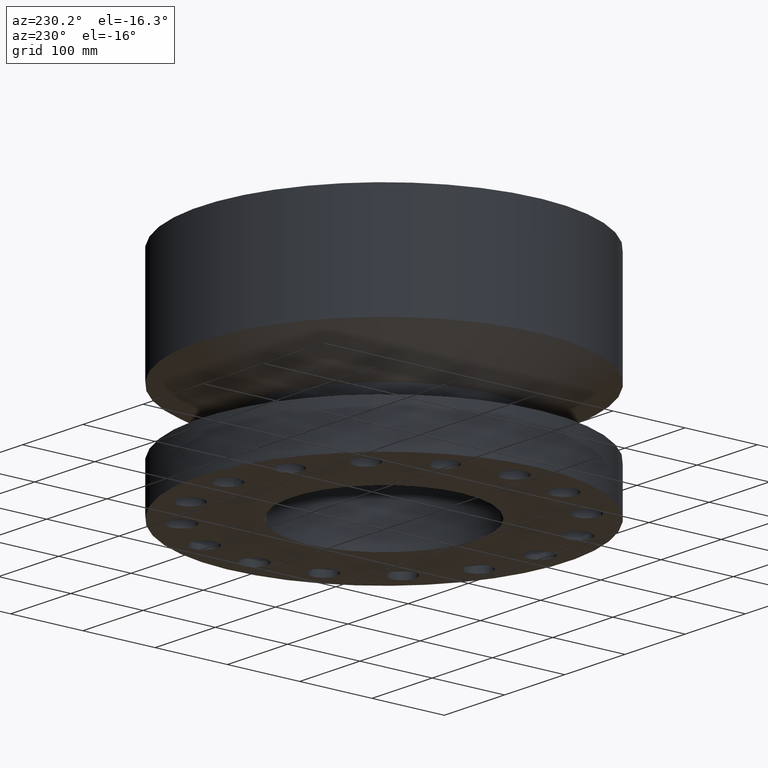
[diagram: clean part render]
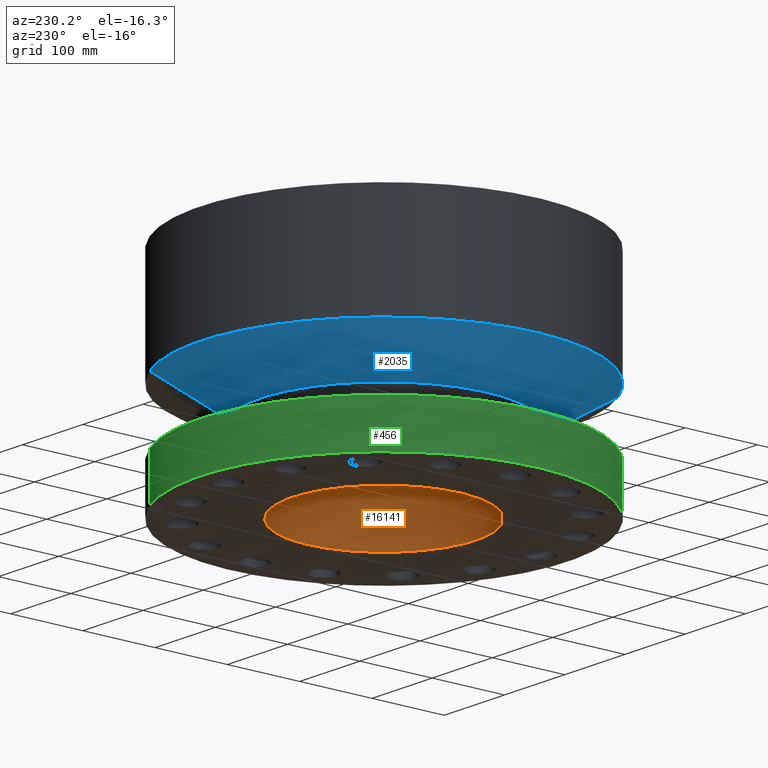
[diagram: same view with three faces highlighted in distinct colors, each labeled with its STEP entity id]
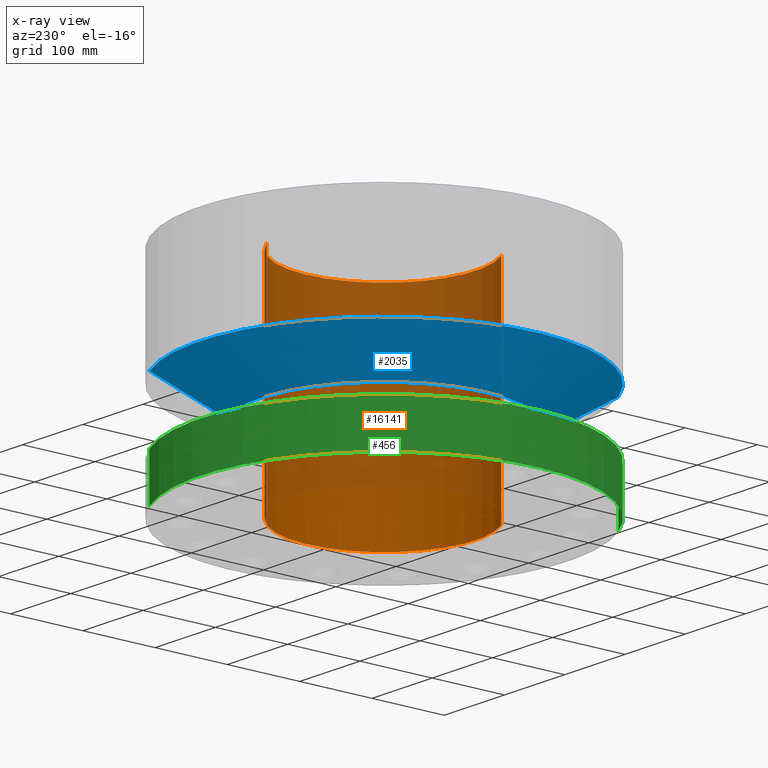
[diagram: x-ray of the same camera — body ghosted, the three highlighted faces saturated]
A machine part, auxiliary view with three faces highlighted in distinct colors.
The next image is the same camera in x-ray (body ghosted, the three faces saturated) — at least one of them is partly hidden behind the body in this view.
Their STEP definitions:

[orange] entity #16141 — the highlighted cylindrical surface (partial cylindrical patch) has radius 127 mm, axis along (0, 0, -1).
#15685=AXIS2_PLACEMENT_3D('Circle Axis2P3D',#15683,#15684,$) ;
#16114=AXIS2_PLACEMENT_3D('Cylinder Axis2P3D',#16111,#16112,#16113) ;
#16118=AXIS2_PLACEMENT_3D('Circle Axis2P3D',#16116,#16117,$) ;
#15678=CARTESIAN_POINT('Vertex',(-2.39712769303,-4.38791280947,11.75)) ;
#15680=CARTESIAN_POINT('Vertex',(2.39712769303,4.38791280947,11.75)) ;
#15683=CARTESIAN_POINT('Axis2P3D Location',(0.,0.,11.75)) ;
#16111=CARTESIAN_POINT('Axis2P3D Location',(0.,0.,5.75000000002)) ;
#16116=CARTESIAN_POINT('Axis2P3D Location',(0.,0.,0.)) ;
#16120=CARTESIAN_POINT('Vertex',(-2.39712769303,-4.38791280947,0.)) ;
#16122=CARTESIAN_POINT('Vertex',(2.39712769303,4.38791280947,0.)) ;
#16125=CARTESIAN_POINT('Line Origine',(-2.39712769303,-4.38791280947,5.87500000002)) ;
#16130=CARTESIAN_POINT('Line Origine',(2.39712769303,4.38791280947,5.87500000002)) ;
#15684=DIRECTION('Axis2P3D Direction',(0.,0.,-0.0393700787402)) ;
#16112=DIRECTION('Axis2P3D Direction',(0.,0.,-0.0393700787402)) ;
#16113=DIRECTION('Axis2P3D XDirection',(-0.0188750212049,-0.0345504945626,0.)) ;
#16117=DIRECTION('Axis2P3D Direction',(0.,0.,-0.0393700787402)) ;
#16126=DIRECTION('Vector Direction',(0.,0.,-0.0393700787402)) ;
#16131=DIRECTION('Vector Direction',(0.,0.,-0.0393700787402)) ;
#16127=VECTOR('Line Direction',#16126,0.0393700787402) ;
#16132=VECTOR('Line Direction',#16131,0.0393700787402) ;
#16136=ORIENTED_EDGE('',*,*,#16124,.F.) ;
#16137=ORIENTED_EDGE('',*,*,#16129,.F.) ;
#16138=ORIENTED_EDGE('',*,*,#15687,.F.) ;
#16139=ORIENTED_EDGE('',*,*,#16134,.T.) ;
#16141=ADVANCED_FACE('PartBody',(#16140),#16115,.F.) ;
#15686=CIRCLE('generated circle',#15685,5.00000000002) ;
#16119=CIRCLE('generated circle',#16118,5.00000000002) ;
#16115=CYLINDRICAL_SURFACE('generated cylinder',#16114,5.00000000002) ;
#15687=EDGE_CURVE('',#15681,#15679,#15686,.T.) ;
#16124=EDGE_CURVE('',#16121,#16123,#16119,.F.) ;
#16129=EDGE_CURVE('',#15679,#16121,#16128,.T.) ;
#16134=EDGE_CURVE('',#15681,#16123,#16133,.T.) ;
#16135=EDGE_LOOP('',(#16136,#16137,#16138,#16139)) ;
#16140=FACE_OUTER_BOUND('',#16135,.T.) ;
#16128=LINE('Line',#16125,#16127) ;
#16133=LINE('Line',#16130,#16132) ;
#15679=VERTEX_POINT('',#15678) ;
#15681=VERTEX_POINT('',#15680) ;
#16121=VERTEX_POINT('',#16120) ;
#16123=VERTEX_POINT('',#16122) ;

[blue] entity #2035 — the highlighted conical surface has half-angle 60 deg.
#1470=AXIS2_PLACEMENT_3D('Circle Axis2P3D',#1468,#1469,$) ;
#1996=AXIS2_PLACEMENT_3D('Cone Axis2P3D',#1993,#1994,#1995) ;
#2026=AXIS2_PLACEMENT_3D('Circle Axis2P3D',#2024,#2025,$) ;
#1446=CARTESIAN_POINT('Vertex',(3.23612238559,5.92368229278,4.00000000002)) ;
#1453=CARTESIAN_POINT('Vertex',(-3.23612238559,-5.92368229278,4.00000000002)) ;
#1468=CARTESIAN_POINT('Axis2P3D Location',(0.,0.,4.00000000002)) ;
#1993=CARTESIAN_POINT('Axis2P3D Location',(0.,0.,4.00000000002)) ;
#1998=CARTESIAN_POINT('Line Origine',(4.01518888583,7.34975395586,4.93819418745)) ;
#2002=CARTESIAN_POINT('Vertex',(4.79425538606,8.77582561894,5.87638837489)) ;
#2009=CARTESIAN_POINT('Vertex',(-4.79425538606,-8.77582561894,5.87638837489)) ;
#2012=CARTESIAN_POINT('Line Origine',(-4.01518888583,-7.34975395586,4.93819418745)) ;
#2024=CARTESIAN_POINT('Axis2P3D Location',(0.,0.,5.87638837489)) ;
#1469=DIRECTION('Axis2P3D Direction',(0.,0.,-0.0393700787402)) ;
#1994=DIRECTION('Axis2P3D Direction',(-0.,-0.,0.0393700787402)) ;
#1995=DIRECTION('Axis2P3D XDirection',(0.0188750212049,0.0345504945626,0.)) ;
#1999=DIRECTION('Vector Direction',(0.0163462478604,0.0299216060045,0.0196850393701)) ;
#2013=DIRECTION('Vector Direction',(-0.0163462478604,-0.0299216060045,0.0196850393701)) ;
#2025=DIRECTION('Axis2P3D Direction',(-0.,0.,0.0393700787402)) ;
#2000=VECTOR('Line Direction',#1999,0.0393700787402) ;
#2014=VECTOR('Line Direction',#2013,0.0393700787402) ;
#2030=ORIENTED_EDGE('',*,*,#1472,.F.) ;
#2031=ORIENTED_EDGE('',*,*,#2016,.T.) ;
#2032=ORIENTED_EDGE('',*,*,#2028,.T.) ;
#2033=ORIENTED_EDGE('',*,*,#2004,.F.) ;
#2035=ADVANCED_FACE('PartBody',(#2034),#1997,.T.) ;
#1471=CIRCLE('generated circle',#1470,6.75000000003) ;
#2027=CIRCLE('generated circle',#2026,10.) ;
#1997=CONICAL_SURFACE('Cone',#1996,6.75000000003,1.0471975512) ;
#1472=EDGE_CURVE('',#1454,#1447,#1471,.T.) ;
#2004=EDGE_CURVE('',#1447,#2003,#2001,.T.) ;
#2016=EDGE_CURVE('',#1454,#2010,#2015,.T.) ;
#2028=EDGE_CURVE('',#2010,#2003,#2027,.F.) ;
#2029=EDGE_LOOP('',(#2030,#2031,#2032,#2033)) ;
#2034=FACE_OUTER_BOUND('',#2029,.T.) ;
#2001=LINE('Line',#1998,#2000) ;
#2015=LINE('Line',#2012,#2014) ;
#1447=VERTEX_POINT('',#1446) ;
#1454=VERTEX_POINT('',#1453) ;
#2003=VERTEX_POINT('',#2002) ;
#2010=VERTEX_POINT('',#2009) ;

[green] entity #456 — the highlighted cylindrical surface (partial cylindrical patch) has radius 254 mm, axis along (0, 0, -1).
#91=AXIS2_PLACEMENT_3D('Circle Axis2P3D',#89,#90,$) ;
#429=AXIS2_PLACEMENT_3D('Cylinder Axis2P3D',#426,#427,#428) ;
#433=AXIS2_PLACEMENT_3D('Circle Axis2P3D',#431,#432,$) ;
#84=CARTESIAN_POINT('Vertex',(4.79425538606,8.77582561894,2.50000000001)) ;
#86=CARTESIAN_POINT('Vertex',(-4.79425538606,-8.77582561894,2.50000000001)) ;
#89=CARTESIAN_POINT('Axis2P3D Location',(0.,0.,2.50000000001)) ;
#426=CARTESIAN_POINT('Axis2P3D Location',(0.,0.,5.75000000002)) ;
#431=CARTESIAN_POINT('Axis2P3D Location',(0.,0.,1.1189649382E-015)) ;
#435=CARTESIAN_POINT('Vertex',(-4.79425538606,-8.77582561894,1.1189649382E-015)) ;
#437=CARTESIAN_POINT('Vertex',(4.79425538606,8.77582561894,1.1189649382E-015)) ;
#440=CARTESIAN_POINT('Line Origine',(-4.79425538606,-8.77582561894,8.81319418747)) ;
#445=CARTESIAN_POINT('Line Origine',(4.79425538606,8.77582561894,8.81319418747)) ;
#90=DIRECTION('Axis2P3D Direction',(0.,0.,-0.0393700787402)) ;
#427=DIRECTION('Axis2P3D Direction',(0.,0.,-0.0393700787402)) ;
#428=DIRECTION('Axis2P3D XDirection',(-0.0188750212049,-0.0345504945626,0.)) ;
#432=DIRECTION('Axis2P3D Direction',(0.,0.,-0.0393700787402)) ;
#441=DIRECTION('Vector Direction',(0.,0.,-0.0393700787402)) ;
#446=DIRECTION('Vector Direction',(0.,0.,-0.0393700787402)) ;
#442=VECTOR('Line Direction',#441,0.0393700787402) ;
#447=VECTOR('Line Direction',#446,0.0393700787402) ;
#451=ORIENTED_EDGE('',*,*,#439,.F.) ;
#452=ORIENTED_EDGE('',*,*,#444,.T.) ;
#453=ORIENTED_EDGE('',*,*,#93,.T.) ;
#454=ORIENTED_EDGE('',*,*,#449,.F.) ;
#456=ADVANCED_FACE('PartBody',(#455),#430,.T.) ;
#92=CIRCLE('generated circle',#91,10.) ;
#434=CIRCLE('generated circle',#433,10.) ;
#430=CYLINDRICAL_SURFACE('generated cylinder',#429,10.) ;
#93=EDGE_CURVE('',#87,#85,#92,.T.) ;
#439=EDGE_CURVE('',#436,#438,#434,.T.) ;
#444=EDGE_CURVE('',#436,#87,#443,.F.) ;
#449=EDGE_CURVE('',#438,#85,#448,.F.) ;
#450=EDGE_LOOP('',(#451,#452,#453,#454)) ;
#455=FACE_OUTER_BOUND('',#450,.T.) ;
#443=LINE('Line',#440,#442) ;
#448=LINE('Line',#445,#447) ;
#85=VERTEX_POINT('',#84) ;
#87=VERTEX_POINT('',#86) ;
#436=VERTEX_POINT('',#435) ;
#438=VERTEX_POINT('',#437) ;